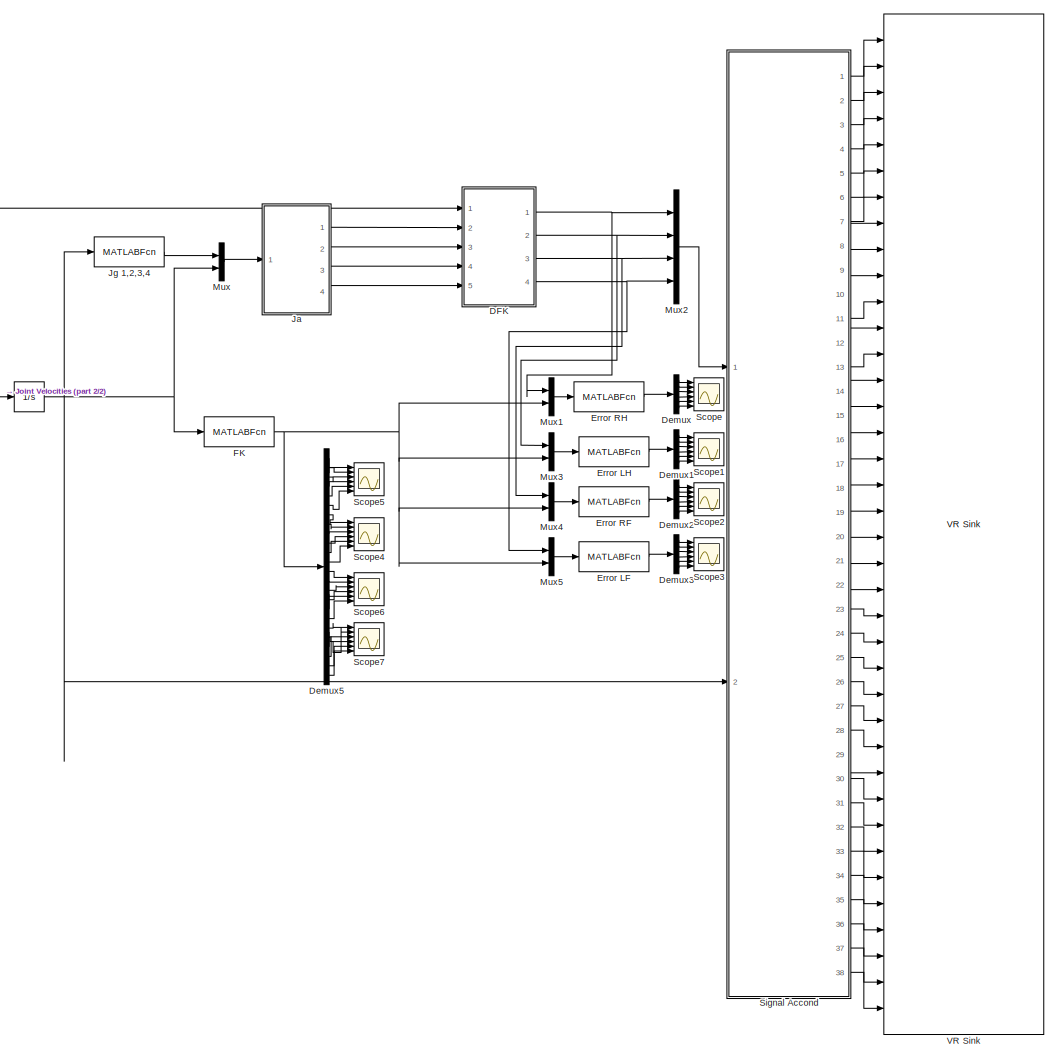
[diagram: root canvas - part 1/2, most of the canvas]
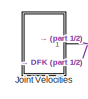
[diagram: root canvas - part 2/2, middle left region]
MODEL slx_c20f365ef06f
KIND model
BLOCK [Integrator]  
  Ports = [1, 1]
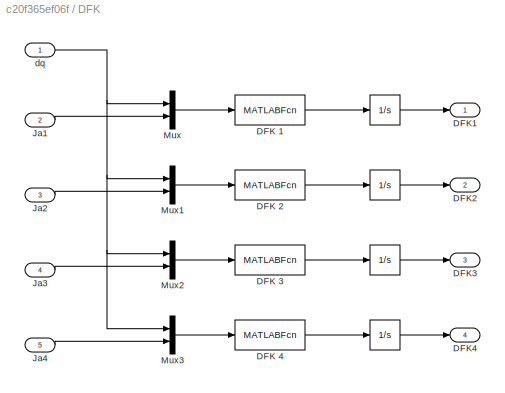
BLOCK [SubSystem] DFK
  FunctionWithSeparateData = off
  MaskHideContents = off
  MinAlgLoopOccurrences = off
  Opaque = off
  Ports = [5, 4]
  PropExecContextOutsideSubsystem = off
  RTWSystemCode = Auto
  RequestExecContextInheritance = off
BLOCK [Integrator] DFK/  
  InitialCondition = [0;-0.2250;-0.0145;0;0;0]
  Ports = [1, 1]
BLOCK [Integrator] DFK/    
  InitialCondition = [0;0.225;-0.0145;0;0;0]
  Ports = [1, 1]
BLOCK [Integrator] DFK/     
  InitialCondition = [0;-0.0385;-0.30250;0;0;0]
  Ports = [1, 1]
BLOCK [Integrator] DFK/      
  InitialCondition = [0;0.0385;-0.3025;0;0;0]
  Ports = [1, 1]
BLOCK [MATLABFcn] DFK/DFK 1
  MATLABFcn = Bioloid_DFK_SV(u(1:24),u(25:168))
  OutputDimensions = 6
  Ports = [1, 1]
BLOCK [MATLABFcn] DFK/DFK 2
  MATLABFcn = Bioloid_DFK_SV(u(1:24),u(25:168))
  OutputDimensions = 6
  Ports = [1, 1]
BLOCK [MATLABFcn] DFK/DFK 3
  MATLABFcn = Bioloid_DFK_SV(u(1:24),u(25:168))
  OutputDimensions = 6
  Ports = [1, 1]
BLOCK [MATLABFcn] DFK/DFK 4
  MATLABFcn = Bioloid_DFK_SV(u(1:24),u(25:168))
  OutputDimensions = 6
  Ports = [1, 1]
BLOCK [Outport] DFK/DFK1
  IconDisplay = Port number
BLOCK [Outport] DFK/DFK2
  IconDisplay = Port number
  Port = 2
BLOCK [Outport] DFK/DFK3
  IconDisplay = Port number
  Port = 3
BLOCK [Outport] DFK/DFK4
  IconDisplay = Port number
  Port = 4
BLOCK [Inport] DFK/Ja1
  IconDisplay = Port number
  Port = 2
BLOCK [Inport] DFK/Ja2
  IconDisplay = Port number
  Port = 3
BLOCK [Inport] DFK/Ja3
  IconDisplay = Port number
  Port = 4
BLOCK [Inport] DFK/Ja4
  IconDisplay = Port number
  Port = 5
BLOCK [Mux] DFK/Mux
  DisplayOption = bar
  Inputs = 2
  Ports = [2, 1]
BLOCK [Mux] DFK/Mux1
  DisplayOption = bar
  Inputs = 2
  Ports = [2, 1]
BLOCK [Mux] DFK/Mux2
  DisplayOption = bar
  Inputs = 2
  Ports = [2, 1]
BLOCK [Mux] DFK/Mux3
  DisplayOption = bar
  Inputs = 2
  Ports = [2, 1]
BLOCK [Inport] DFK/dq
  IconDisplay = Port number
BLOCK [Demux] Demux
  DisplayOption = bar
  Outputs = 6
  Ports = [1, 6]
BLOCK [Demux] Demux1
  DisplayOption = bar
  Outputs = 6
  Ports = [1, 6]
BLOCK [Demux] Demux2
  DisplayOption = bar
  Outputs = 6
  Ports = [1, 6]
BLOCK [Demux] Demux3
  DisplayOption = bar
  Outputs = 6
  Ports = [1, 6]
BLOCK [Demux] Demux5
  DisplayOption = bar
  Outputs = 24
  Ports = [1, 24]
BLOCK [MATLABFcn] Error LF
  MATLABFcn = Error_Poses(u(1:6),u(25:30))
  OutputDimensions = 6
  Ports = [1, 1]
BLOCK [MATLABFcn] Error LH
  MATLABFcn = Error_Poses(u(1:6),u(13:18))
  OutputDimensions = 6
  Ports = [1, 1]
BLOCK [MATLABFcn] Error RF
  MATLABFcn = Error_Poses(u(1:6),u(19:24))
  OutputDimensions = 6
  Ports = [1, 1]
BLOCK [MATLABFcn] Error RH
  MATLABFcn = Error_Poses(u(1:6),u(7:12))
  OutputDimensions = 6
  Ports = [1, 1]
BLOCK [MATLABFcn] FK
  MATLABFcn = ToSimulink_Bioloid_FK_ST(u)
  OutputDimensions = 24
  Ports = [1, 1]
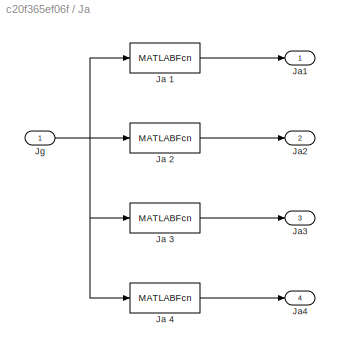
BLOCK [SubSystem] Ja 
  FunctionWithSeparateData = off
  MaskHideContents = off
  MinAlgLoopOccurrences = off
  Opaque = off
  Ports = [1, 4]
  PropExecContextOutsideSubsystem = off
  RTWSystemCode = Auto
  RequestExecContextInheritance = off
BLOCK [MATLABFcn] Ja /Ja 1
  MATLABFcn = Bioloid_Ja_SV(u(1:150),u(601:624))
  OutputDimensions = 144
  Ports = [1, 1]
BLOCK [MATLABFcn] Ja /Ja 2
  MATLABFcn = Bioloid_Ja_SV(u(151:300),u(601:624))
  OutputDimensions = 144
  Ports = [1, 1]
BLOCK [MATLABFcn] Ja /Ja 3
  MATLABFcn = Bioloid_Ja_SV(u(301:450),u(601:624))
  OutputDimensions = 144
  Ports = [1, 1]
BLOCK [MATLABFcn] Ja /Ja 4
  MATLABFcn = Bioloid_Ja_SV(u(451:600),u(601:624))
  OutputDimensions = 144
  Ports = [1, 1]
BLOCK [Outport] Ja /Ja1
  IconDisplay = Port number
BLOCK [Outport] Ja /Ja2
  IconDisplay = Port number
  Port = 2
BLOCK [Outport] Ja /Ja3
  IconDisplay = Port number
  Port = 3
BLOCK [Outport] Ja /Ja4
  IconDisplay = Port number
  Port = 4
BLOCK [Inport] Ja /Jg
  IconDisplay = Port number
BLOCK [MATLABFcn] Jg 1,2,3,4
  MATLABFcn = Bioloid_Jg_SV(u)
  OutputDimensions = 600
  Ports = [1, 1]
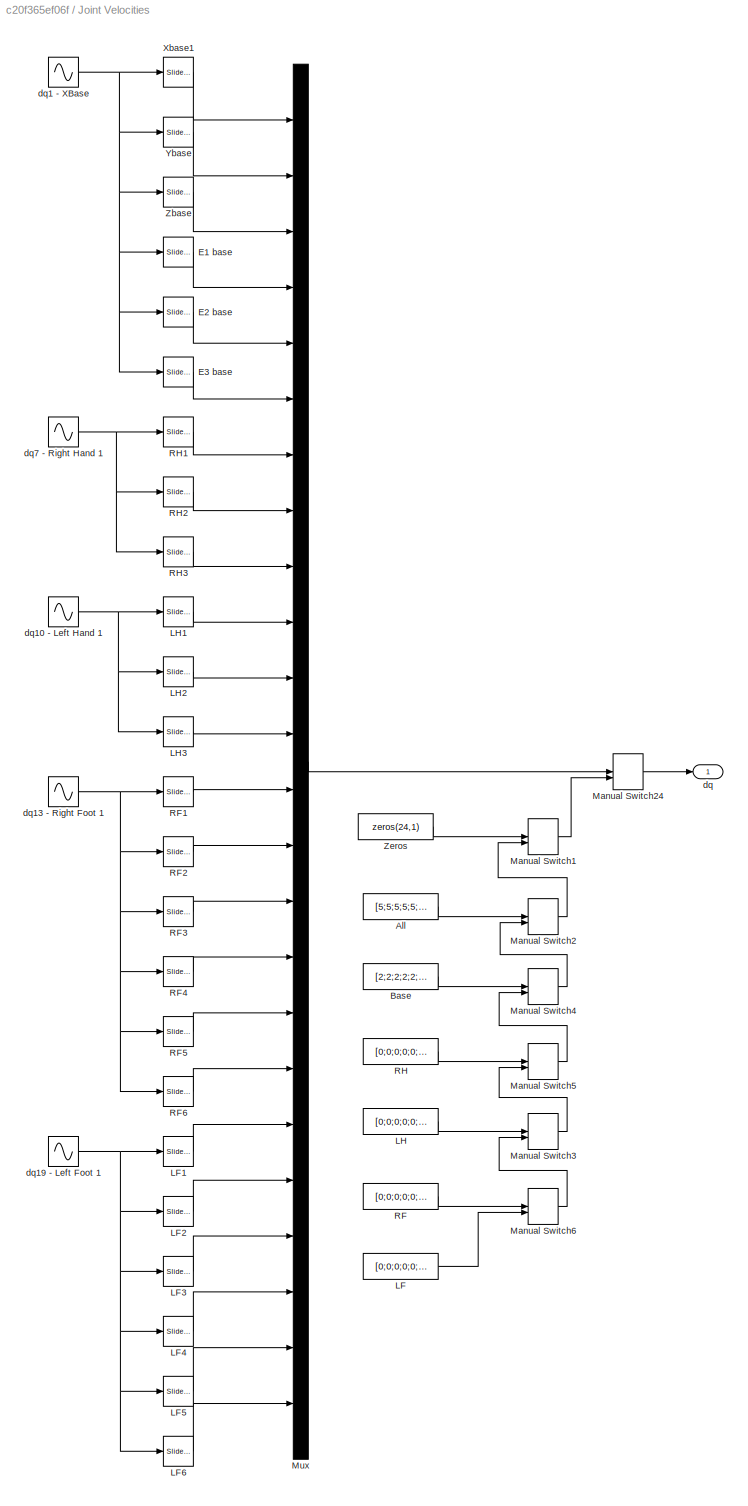
BLOCK [SubSystem] Joint Velocities
  FunctionWithSeparateData = off
  MaskHideContents = off
  MinAlgLoopOccurrences = off
  Opaque = off
  Ports = [0, 1]
  PropExecContextOutsideSubsystem = off
  RTWSystemCode = Auto
  RequestExecContextInheritance = off
BLOCK [Constant] Joint Velocities/All
  Value = [5;5;5;5;5;5;5;5;5;5;5;5;5;5;5;5;5;5;5;5;5;5;5;5]
BLOCK [Constant] Joint Velocities/Base
  Value = [2;2;2;2;2;2;0;0;0;0;0;0;0;0;0;0;0;0;0;0;0;0;0;0]
BLOCK [Reference] Joint Velocities/E1 base  REF=simulink/Math
Operations/Slider
Gain
  Ports = [1, 1]
  SourceBlock = simulink/Math\nOperations/Slider\nGain
  SourceType = Slider Gain
  gain = 0
  high = 5
  low = -5
BLOCK [Reference] Joint Velocities/E2 base  REF=simulink/Math
Operations/Slider
Gain
  Ports = [1, 1]
  SourceBlock = simulink/Math\nOperations/Slider\nGain
  SourceType = Slider Gain
  gain = 5
  high = 5
  low = -5
BLOCK [Reference] Joint Velocities/E3 base  REF=simulink/Math
Operations/Slider
Gain
  Ports = [1, 1]
  SourceBlock = simulink/Math\nOperations/Slider\nGain
  SourceType = Slider Gain
  gain = 0
  high = 5
  low = -5
BLOCK [Constant] Joint Velocities/LF
  Value = [0;0;0;0;0;0;0;0;0;0;0;0;0;0;0;0;0;0;2;2;2;2;2;2]
BLOCK [Reference] Joint Velocities/LF1  REF=simulink/Math
Operations/Slider
Gain
  Ports = [1, 1]
  SourceBlock = simulink/Math\nOperations/Slider\nGain
  SourceType = Slider Gain
  gain = 0
  high = 5
  low = 0
BLOCK [Reference] Joint Velocities/LF2  REF=simulink/Math
Operations/Slider
Gain
  Ports = [1, 1]
  SourceBlock = simulink/Math\nOperations/Slider\nGain
  SourceType = Slider Gain
  gain = 0
  high = 5
  low = 0
BLOCK [Reference] Joint Velocities/LF3  REF=simulink/Math
Operations/Slider
Gain
  Ports = [1, 1]
  SourceBlock = simulink/Math\nOperations/Slider\nGain
  SourceType = Slider Gain
  gain = 0
  high = 5
  low = 0
BLOCK [Reference] Joint Velocities/LF4  REF=simulink/Math
Operations/Slider
Gain
  Ports = [1, 1]
  SourceBlock = simulink/Math\nOperations/Slider\nGain
  SourceType = Slider Gain
  gain = 0
  high = 5
  low = 0
BLOCK [Reference] Joint Velocities/LF5  REF=simulink/Math
Operations/Slider
Gain
  Ports = [1, 1]
  SourceBlock = simulink/Math\nOperations/Slider\nGain
  SourceType = Slider Gain
  gain = 0
  high = 5
  low = 0
BLOCK [Reference] Joint Velocities/LF6  REF=simulink/Math
Operations/Slider
Gain
  Ports = [1, 1]
  SourceBlock = simulink/Math\nOperations/Slider\nGain
  SourceType = Slider Gain
  gain = 0
  high = 5
  low = 0
BLOCK [Constant] Joint Velocities/LH
  Value = [0;0;0;0;0;0;0;0;0;2;2;2;0;0;0;0;0;0;0;0;0;0;0;0]
BLOCK [Reference] Joint Velocities/LH1  REF=simulink/Math
Operations/Slider
Gain
  Ports = [1, 1]
  SourceBlock = simulink/Math\nOperations/Slider\nGain
  SourceType = Slider Gain
  gain = 0
  high = 5
  low = 0
BLOCK [Reference] Joint Velocities/LH2  REF=simulink/Math
Operations/Slider
Gain
  Ports = [1, 1]
  SourceBlock = simulink/Math\nOperations/Slider\nGain
  SourceType = Slider Gain
  gain = 0
  high = 5
  low = 0
BLOCK [Reference] Joint Velocities/LH3  REF=simulink/Math
Operations/Slider
Gain
  Ports = [1, 1]
  SourceBlock = simulink/Math\nOperations/Slider\nGain
  SourceType = Slider Gain
  gain = 0
  high = 5
  low = 0
BLOCK [ManualSwitch] Joint Velocities/Manual Switch1
  CurrentSetting = 0
BLOCK [ManualSwitch] Joint Velocities/Manual Switch2
BLOCK [ManualSwitch] Joint Velocities/Manual Switch24
BLOCK [ManualSwitch] Joint Velocities/Manual Switch3
  CurrentSetting = 0
BLOCK [ManualSwitch] Joint Velocities/Manual Switch4
BLOCK [ManualSwitch] Joint Velocities/Manual Switch5
  CurrentSetting = 0
BLOCK [ManualSwitch] Joint Velocities/Manual Switch6
  CurrentSetting = 0
BLOCK [Mux] Joint Velocities/Mux
  DisplayOption = bar
  Inputs = 24
  Ports = [24, 1]
BLOCK [Constant] Joint Velocities/RF
  Value = [0;0;0;0;0;0;0;0;0;0;0;0;2;2;2;2;2;2;0;0;0;0;0;0]
BLOCK [Reference] Joint Velocities/RF1  REF=simulink/Math
Operations/Slider
Gain
  Ports = [1, 1]
  SourceBlock = simulink/Math\nOperations/Slider\nGain
  SourceType = Slider Gain
  gain = 0
  high = 5
  low = 0
BLOCK [Reference] Joint Velocities/RF2  REF=simulink/Math
Operations/Slider
Gain
  Ports = [1, 1]
  SourceBlock = simulink/Math\nOperations/Slider\nGain
  SourceType = Slider Gain
  gain = 0
  high = 5
  low = 0
BLOCK [Reference] Joint Velocities/RF3  REF=simulink/Math
Operations/Slider
Gain
  Ports = [1, 1]
  SourceBlock = simulink/Math\nOperations/Slider\nGain
  SourceType = Slider Gain
  gain = 0
  high = 5
  low = 0
BLOCK [Reference] Joint Velocities/RF4  REF=simulink/Math
Operations/Slider
Gain
  Ports = [1, 1]
  SourceBlock = simulink/Math\nOperations/Slider\nGain
  SourceType = Slider Gain
  gain = 0
  high = 5
  low = 0
BLOCK [Reference] Joint Velocities/RF5  REF=simulink/Math
Operations/Slider
Gain
  Ports = [1, 1]
  SourceBlock = simulink/Math\nOperations/Slider\nGain
  SourceType = Slider Gain
  gain = 0
  high = 5
  low = 0
BLOCK [Reference] Joint Velocities/RF6  REF=simulink/Math
Operations/Slider
Gain
  Ports = [1, 1]
  SourceBlock = simulink/Math\nOperations/Slider\nGain
  SourceType = Slider Gain
  gain = 0
  high = 5
  low = 0
BLOCK [Constant] Joint Velocities/RH
  Value = [0;0;0;0;0;0;2;2;2;0;0;0;0;0;0;0;0;0;0;0;0;0;0;0]
BLOCK [Reference] Joint Velocities/RH1  REF=simulink/Math
Operations/Slider
Gain
  Ports = [1, 1]
  SourceBlock = simulink/Math\nOperations/Slider\nGain
  SourceType = Slider Gain
  gain = 0
  high = 5
  low = 0
BLOCK [Reference] Joint Velocities/RH2  REF=simulink/Math
Operations/Slider
Gain
  Ports = [1, 1]
  SourceBlock = simulink/Math\nOperations/Slider\nGain
  SourceType = Slider Gain
  gain = 0
  high = 5
  low = 0
BLOCK [Reference] Joint Velocities/RH3  REF=simulink/Math
Operations/Slider
Gain
  Ports = [1, 1]
  SourceBlock = simulink/Math\nOperations/Slider\nGain
  SourceType = Slider Gain
  gain = 0
  high = 5
  low = 0
BLOCK [Reference] Joint Velocities/Xbase1  REF=simulink/Math
Operations/Slider
Gain
  Ports = [1, 1]
  SourceBlock = simulink/Math\nOperations/Slider\nGain
  SourceType = Slider Gain
  gain = 5
  high = 5
  low = -5
BLOCK [Reference] Joint Velocities/Ybase  REF=simulink/Math
Operations/Slider
Gain
  Ports = [1, 1]
  SourceBlock = simulink/Math\nOperations/Slider\nGain
  SourceType = Slider Gain
  gain = 5
  high = 5
  low = -5
BLOCK [Reference] Joint Velocities/Zbase  REF=simulink/Math
Operations/Slider
Gain
  Ports = [1, 1]
  SourceBlock = simulink/Math\nOperations/Slider\nGain
  SourceType = Slider Gain
  gain = 5
  high = 5
  low = -5
BLOCK [Constant] Joint Velocities/Zeros
  Value = zeros(24,1)
BLOCK [Outport] Joint Velocities/dq
  IconDisplay = Port number
BLOCK [Sin] Joint Velocities/dq1 - XBase
  Ports = [0, 1]
  SampleTime = 0
BLOCK [Sin] Joint Velocities/dq10 - Left Hand 1
  Ports = [0, 1]
  SampleTime = 0
BLOCK [Sin] Joint Velocities/dq13 - Right Foot 1
  Ports = [0, 1]
  SampleTime = 0
BLOCK [Sin] Joint Velocities/dq19 - Left Foot 1
  Ports = [0, 1]
  SampleTime = 0
BLOCK [Sin] Joint Velocities/dq7 - Right Hand 1
  Ports = [0, 1]
  SampleTime = 0
BLOCK [Mux] Mux
  DisplayOption = bar
  Inputs = 2
  Ports = [2, 1]
BLOCK [Mux] Mux1
  DisplayOption = bar
  Inputs = 2
  Ports = [2, 1]
BLOCK [Mux] Mux2
  DisplayOption = bar
  Ports = [4, 1]
BLOCK [Mux] Mux3
  DisplayOption = bar
  Inputs = 2
  Ports = [2, 1]
BLOCK [Mux] Mux4
  DisplayOption = bar
  Inputs = 2
  Ports = [2, 1]
BLOCK [Mux] Mux5
  DisplayOption = bar
  Inputs = 2
  Ports = [2, 1]
BLOCK [Scope] Scope
  DataFormat = StructureWithTime
  Floating = off
  NumInputPorts = 6
  Ports = [6]
  SampleTime = 0
  ShowLegends = off
  YMax = 1.7e-09~2.75e-09~6e-17~1~1~-1e-06
  YMin = 7e-10~1.03398e-25~0~-1~-1~-7e-06
  ZoomMode = xonly
BLOCK [Scope] Scope1
  DataFormat = StructureWithTime
  Floating = off
  NumInputPorts = 6
  Ports = [6]
  SampleTime = 0
  SaveName = ScopeData1
  ShowLegends = off
  TimeRange = 10
  YMax = 5e-06~3.5e-05~2.5e-06~7~0.001~1
  YMin = -2.5e-05~-5e-06~-2e-05~-1~-0.007~-7
BLOCK [Scope] Scope2
  DataFormat = StructureWithTime
  Floating = off
  NumInputPorts = 6
  Ports = [6]
  SampleTime = 0
  SaveName = ScopeData2
  ShowLegends = off
  YMax = 1e-05~2.5e-05~6e-05~40~0.1~0.5
  YMin = -7e-05~-0.000175~-2e-05~-5~-0.075~-3.5
BLOCK [Scope] Scope3
  DataFormat = StructureWithTime
  Floating = off
  NumInputPorts = 6
  Ports = [6]
  SampleTime = 0
  SaveName = ScopeData3
  ShowLegends = off
  YMax = 1e-05~2.5e-05~6e-05~40~0.1~0.5
  YMin = -7e-05~-0.000175~-2e-05~-5~-0.075~-3.5
BLOCK [Scope] Scope4
  DataFormat = StructureWithTime
  Floating = off
  NumInputPorts = 6
  Ports = [6]
  SampleTime = 0
  SaveName = ScopeData4
  ShowLegends = off
  YMax = 7.5e-06~-2e-05~0.00011~7~-0.005~0
  YMin = -2e-05~-9e-05~4e-05~0~-0.015~-7
BLOCK [Scope] Scope5
  DataFormat = StructureWithTime
  Floating = off
  NumInputPorts = 6
  Ports = [6]
  SampleTime = 0
  SaveName = ScopeData5
  ShowLegends = off
  YMax = 5.6~5.4~5.8~-0.7~-0.005~0
  YMin = 4.6~4.6~4.9~-1.7~-0.015~-7
  ZoomMode = yonly
BLOCK [Scope] Scope6
  DataFormat = StructureWithTime
  Floating = off
  NumInputPorts = 6
  Ports = [6]
  SampleTime = 0
  SaveName = ScopeData6
  ShowLegends = off
  YMax = 7.5e-06~-2e-05~0.00011~7~-0.005~0
  YMin = -2e-05~-9e-05~4e-05~0~-0.015~-7
BLOCK [Scope] Scope7
  DataFormat = StructureWithTime
  Floating = off
  NumInputPorts = 6
  Ports = [6]
  SampleTime = 0
  SaveName = ScopeData7
  ShowLegends = off
  YMax = 7.5e-06~-2e-05~0.00011~7~-0.005~0
  YMin = -2e-05~-9e-05~4e-05~0~-0.015~-7
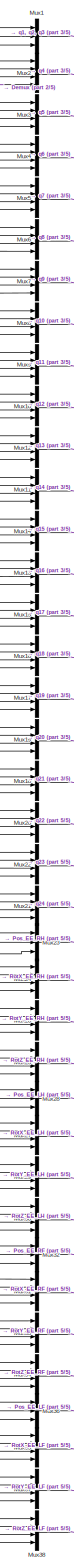
[diagram: Signal Accond - part 1/5, center side, full height]
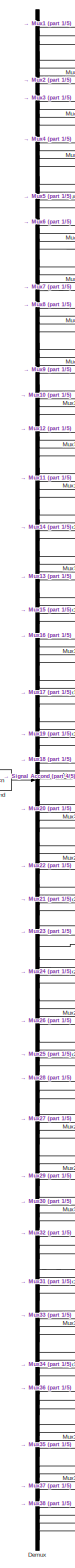
[diagram: Signal Accond - part 2/5, center side, full height]
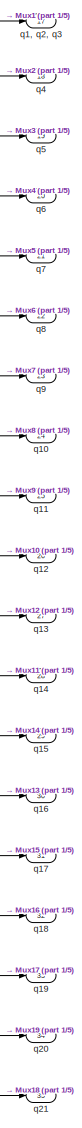
[diagram: Signal Accond - part 3/5, top right region]
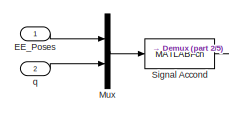
[diagram: Signal Accond - part 4/5, middle left region]
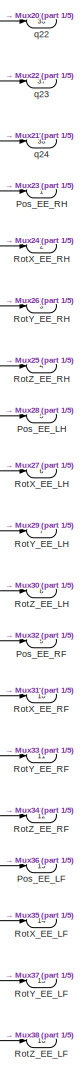
[diagram: Signal Accond - part 5/5, bottom right region]
BLOCK [SubSystem] Signal Accond
  FunctionWithSeparateData = off
  MaskHideContents = off
  MinAlgLoopOccurrences = off
  Opaque = off
  Ports = [2, 38]
  PropExecContextOutsideSubsystem = off
  RTWSystemCode = Auto
  RequestExecContextInheritance = off
BLOCK [Demux] Signal Accond/Demux
  DisplayOption = bar
  Outputs = 147
  Ports = [1, 147]
BLOCK [Inport] Signal Accond/EE_Poses
  IconDisplay = Port number
BLOCK [Mux] Signal Accond/Mux
  DisplayOption = bar
  Inputs = 2
  Ports = [2, 1]
BLOCK [Mux] Signal Accond/Mux1
  DisplayOption = bar
  Inputs = 3
  Ports = [3, 1]
BLOCK [Mux] Signal Accond/Mux10
  DisplayOption = bar
  Ports = [4, 1]
BLOCK [Mux] Signal Accond/Mux11
  DisplayOption = bar
  Ports = [4, 1]
BLOCK [Mux] Signal Accond/Mux12
  DisplayOption = bar
  Ports = [4, 1]
BLOCK [Mux] Signal Accond/Mux13
  DisplayOption = bar
  Ports = [4, 1]
BLOCK [Mux] Signal Accond/Mux14
  DisplayOption = bar
  Ports = [4, 1]
BLOCK [Mux] Signal Accond/Mux15
  DisplayOption = bar
  Ports = [4, 1]
BLOCK [Mux] Signal Accond/Mux16
  DisplayOption = bar
  Ports = [4, 1]
BLOCK [Mux] Signal Accond/Mux17
  DisplayOption = bar
  Ports = [4, 1]
BLOCK [Mux] Signal Accond/Mux18
  DisplayOption = bar
  Ports = [4, 1]
BLOCK [Mux] Signal Accond/Mux19
  DisplayOption = bar
  Ports = [4, 1]
BLOCK [Mux] Signal Accond/Mux2
  DisplayOption = bar
  Ports = [4, 1]
BLOCK [Mux] Signal Accond/Mux20
  DisplayOption = bar
  Ports = [4, 1]
BLOCK [Mux] Signal Accond/Mux21
  DisplayOption = bar
  Ports = [4, 1]
BLOCK [Mux] Signal Accond/Mux22
  DisplayOption = bar
  Ports = [4, 1]
BLOCK [Mux] Signal Accond/Mux23
  DisplayOption = bar
  Inputs = 3
  Ports = [3, 1]
BLOCK [Mux] Signal Accond/Mux24
  DisplayOption = bar
  Ports = [4, 1]
BLOCK [Mux] Signal Accond/Mux25
  DisplayOption = bar
  Ports = [4, 1]
BLOCK [Mux] Signal Accond/Mux26
  DisplayOption = bar
  Ports = [4, 1]
BLOCK [Mux] Signal Accond/Mux27
  DisplayOption = bar
  Ports = [4, 1]
BLOCK [Mux] Signal Accond/Mux28
  DisplayOption = bar
  Inputs = 3
  Ports = [3, 1]
BLOCK [Mux] Signal Accond/Mux29
  DisplayOption = bar
  Ports = [4, 1]
BLOCK [Mux] Signal Accond/Mux3
  DisplayOption = bar
  Ports = [4, 1]
BLOCK [Mux] Signal Accond/Mux30
  DisplayOption = bar
  Ports = [4, 1]
BLOCK [Mux] Signal Accond/Mux31
  DisplayOption = bar
  Ports = [4, 1]
BLOCK [Mux] Signal Accond/Mux32
  DisplayOption = bar
  Inputs = 3
  Ports = [3, 1]
BLOCK [Mux] Signal Accond/Mux33
  DisplayOption = bar
  Ports = [4, 1]
BLOCK [Mux] Signal Accond/Mux34
  DisplayOption = bar
  Ports = [4, 1]
BLOCK [Mux] Signal Accond/Mux35
  DisplayOption = bar
  Ports = [4, 1]
BLOCK [Mux] Signal Accond/Mux36
  DisplayOption = bar
  Inputs = 3
  Ports = [3, 1]
BLOCK [Mux] Signal Accond/Mux37
  DisplayOption = bar
  Ports = [4, 1]
BLOCK [Mux] Signal Accond/Mux38
  DisplayOption = bar
  Ports = [4, 1]
BLOCK [Mux] Signal Accond/Mux4
  DisplayOption = bar
  Ports = [4, 1]
BLOCK [Mux] Signal Accond/Mux5
  DisplayOption = bar
  Ports = [4, 1]
BLOCK [Mux] Signal Accond/Mux6
  DisplayOption = bar
  Ports = [4, 1]
BLOCK [Mux] Signal Accond/Mux7
  DisplayOption = bar
  Ports = [4, 1]
BLOCK [Mux] Signal Accond/Mux8
  DisplayOption = bar
  Ports = [4, 1]
BLOCK [Mux] Signal Accond/Mux9
  DisplayOption = bar
  Ports = [4, 1]
BLOCK [Outport] Signal Accond/Pos_EE_LF
  IconDisplay = Port number
  Port = 13
BLOCK [Outport] Signal Accond/Pos_EE_LH
  IconDisplay = Port number
  Port = 5
BLOCK [Outport] Signal Accond/Pos_EE_RF
  IconDisplay = Port number
  Port = 9
BLOCK [Outport] Signal Accond/Pos_EE_RH
  IconDisplay = Port number
BLOCK [Outport] Signal Accond/RotX_EE_LF
  IconDisplay = Port number
  Port = 14
BLOCK [Outport] Signal Accond/RotX_EE_LH
  IconDisplay = Port number
  Port = 6
BLOCK [Outport] Signal Accond/RotX_EE_RF
  IconDisplay = Port number
  Port = 10
BLOCK [Outport] Signal Accond/RotX_EE_RH
  IconDisplay = Port number
  Port = 2
BLOCK [Outport] Signal Accond/RotY_EE_LF
  IconDisplay = Port number
  Port = 15
BLOCK [Outport] Signal Accond/RotY_EE_LH
  IconDisplay = Port number
  Port = 7
BLOCK [Outport] Signal Accond/RotY_EE_RF
  IconDisplay = Port number
  Port = 11
BLOCK [Outport] Signal Accond/RotY_EE_RH
  IconDisplay = Port number
  Port = 3
BLOCK [Outport] Signal Accond/RotZ_EE_LF
  IconDisplay = Port number
  Port = 16
BLOCK [Outport] Signal Accond/RotZ_EE_LH
  IconDisplay = Port number
  Port = 8
BLOCK [Outport] Signal Accond/RotZ_EE_RF
  IconDisplay = Port number
  Port = 12
BLOCK [Outport] Signal Accond/RotZ_EE_RH
  IconDisplay = Port number
  Port = 4
BLOCK [MATLABFcn] Signal Accond/Signal Accond
  MATLABFcn = Bioloid_Signals2VRML(u(1:6),u(7:12),u(13:18),u(19:24),u(25:48))
  Ports = [1, 1]
BLOCK [Inport] Signal Accond/q
  IconDisplay = Port number
  Port = 2
BLOCK [Outport] Signal Accond/q1, q2, q3
  IconDisplay = Port number
  Port = 17
BLOCK [Outport] Signal Accond/q10
  IconDisplay = Port number
  Port = 24
BLOCK [Outport] Signal Accond/q11
  IconDisplay = Port number
  Port = 25
BLOCK [Outport] Signal Accond/q12
  IconDisplay = Port number
  Port = 26
BLOCK [Outport] Signal Accond/q13
  IconDisplay = Port number
  Port = 27
BLOCK [Outport] Signal Accond/q14
  IconDisplay = Port number
  Port = 28
BLOCK [Outport] Signal Accond/q15
  IconDisplay = Port number
  Port = 29
BLOCK [Outport] Signal Accond/q16
  IconDisplay = Port number
  Port = 30
BLOCK [Outport] Signal Accond/q17
  IconDisplay = Port number
  Port = 31
BLOCK [Outport] Signal Accond/q18
  IconDisplay = Port number
  Port = 32
BLOCK [Outport] Signal Accond/q19
  IconDisplay = Port number
  Port = 33
BLOCK [Outport] Signal Accond/q20
  IconDisplay = Port number
  Port = 34
BLOCK [Outport] Signal Accond/q21
  IconDisplay = Port number
  Port = 35
BLOCK [Outport] Signal Accond/q22
  IconDisplay = Port number
  Port = 36
BLOCK [Outport] Signal Accond/q23
  IconDisplay = Port number
  Port = 37
BLOCK [Outport] Signal Accond/q24
  IconDisplay = Port number
  Port = 38
BLOCK [Outport] Signal Accond/q4
  IconDisplay = Port number
  Port = 18
BLOCK [Outport] Signal Accond/q5 
  IconDisplay = Port number
  Port = 19
BLOCK [Outport] Signal Accond/q6
  IconDisplay = Port number
  Port = 20
BLOCK [Outport] Signal Accond/q7
  IconDisplay = Port number
  Port = 21
BLOCK [Outport] Signal Accond/q8
  IconDisplay = Port number
  Port = 22
BLOCK [Outport] Signal Accond/q9
  IconDisplay = Port number
  Port = 23
BLOCK [Reference] VR Sink  REF=vrlib/VR Sink
  AllowVariableSize = off
  AutoView = off
  FieldsWritten = EE_RH_Traslation.translation.3.1.1.double#EE_RH_RotX.rotation.4.1.1.double#EE_RH_RotY.rotation.4.1.1.double#EE_RH_RotZ.rotation.4.1.1.double#EE_LH_Traslation.translation.3.1.1.double#EE_LH_RotX.rotation.4.1.1.double#EE_LH_RotY.rotation.4.1.1.double#EE_LH_RotZ.rotation.4.1.1.double#EE_RF_Traslation.translation.3.1.1.double#EE_RF_RotX.rotation.4.1.1.double#EE_RF_RotY.rotation.4.1.1.double#EE_RF_RotZ...<+909ch>
  InstantiateOnLoad = on
  Ports = [38]
  RemoteChange = off
  RemoteView = off
  SampleTime = 0.1
  SourceBlock = vrlib/VR Sink
  SourceType = Virtual Reality Sink
  VideoDimensions = []
  ViewEnable = on
  WorldFileName = Bioloid (Fisico White_Background).WRL
NET  :1 -> FK:1, Jg 1,2,3,4:1, Mux:2, Signal Accond:2
LINE DFK/      :1 -> DFK/DFK4:1
LINE DFK/     :1 -> DFK/DFK3:1
LINE DFK/    :1 -> DFK/DFK2:1
LINE DFK/  :1 -> DFK/DFK1:1
LINE DFK/DFK 1:1 -> DFK/  :1
LINE DFK/DFK 2:1 -> DFK/    :1
LINE DFK/DFK 3:1 -> DFK/     :1
LINE DFK/DFK 4:1 -> DFK/      :1
LINE DFK/Ja1:1 -> DFK/Mux:2
LINE DFK/Ja2:1 -> DFK/Mux1:2
LINE DFK/Ja3:1 -> DFK/Mux2:2
LINE DFK/Ja4:1 -> DFK/Mux3:2
LINE DFK/Mux1:1 -> DFK/DFK 2:1
LINE DFK/Mux2:1 -> DFK/DFK 3:1
LINE DFK/Mux3:1 -> DFK/DFK 4:1
LINE DFK/Mux:1 -> DFK/DFK 1:1
NET DFK/dq:1 -> DFK/Mux1:1, DFK/Mux2:1, DFK/Mux3:1, DFK/Mux:1
NET DFK:1 -> Mux1:1, Mux2:1
NET DFK:2 -> Mux2:2, Mux3:1
NET DFK:3 -> Mux2:3, Mux4:1
NET DFK:4 -> Mux2:4, Mux5:1
LINE Demux1:1 -> Scope1:1
LINE Demux1:2 -> Scope1:2
LINE Demux1:3 -> Scope1:3
LINE Demux1:4 -> Scope1:4
LINE Demux1:5 -> Scope1:5
LINE Demux1:6 -> Scope1:6
LINE Demux2:1 -> Scope2:1
LINE Demux2:2 -> Scope2:2
LINE Demux2:3 -> Scope2:3
LINE Demux2:4 -> Scope2:4
LINE Demux2:5 -> Scope2:5
LINE Demux2:6 -> Scope2:6
LINE Demux3:1 -> Scope3:1
LINE Demux3:2 -> Scope3:2
LINE Demux3:3 -> Scope3:3
LINE Demux3:4 -> Scope3:4
LINE Demux3:5 -> Scope3:5
LINE Demux3:6 -> Scope3:6
LINE Demux5:1 -> Scope5:1
LINE Demux5:10 -> Scope4:4
LINE Demux5:11 -> Scope4:5
LINE Demux5:12 -> Scope4:6
LINE Demux5:13 -> Scope6:1
LINE Demux5:14 -> Scope6:2
LINE Demux5:15 -> Scope6:3
LINE Demux5:16 -> Scope6:4
LINE Demux5:17 -> Scope6:5
LINE Demux5:18 -> Scope6:6
LINE Demux5:19 -> Scope7:1
LINE Demux5:2 -> Scope5:2
LINE Demux5:20 -> Scope7:2
LINE Demux5:21 -> Scope7:3
LINE Demux5:22 -> Scope7:4
LINE Demux5:23 -> Scope7:5
LINE Demux5:24 -> Scope7:6
LINE Demux5:3 -> Scope5:3
LINE Demux5:4 -> Scope5:4
LINE Demux5:5 -> Scope5:5
LINE Demux5:6 -> Scope5:6
LINE Demux5:7 -> Scope4:1
LINE Demux5:8 -> Scope4:2
LINE Demux5:9 -> Scope4:3
LINE Demux:1 -> Scope:1
LINE Demux:2 -> Scope:2
LINE Demux:3 -> Scope:3
LINE Demux:4 -> Scope:4
LINE Demux:5 -> Scope:5
LINE Demux:6 -> Scope:6
LINE Error LF:1 -> Demux3:1
LINE Error LH:1 -> Demux1:1
LINE Error RF:1 -> Demux2:1
LINE Error RH:1 -> Demux:1
NET FK:1 -> Demux5:1, Mux1:2, Mux3:2, Mux4:2, Mux5:2
LINE Ja /Ja 1:1 -> Ja /Ja1:1
LINE Ja /Ja 2:1 -> Ja /Ja2:1
LINE Ja /Ja 3:1 -> Ja /Ja3:1
LINE Ja /Ja 4:1 -> Ja /Ja4:1
NET Ja /Jg:1 -> Ja /Ja 1:1, Ja /Ja 2:1, Ja /Ja 3:1, Ja /Ja 4:1
LINE Ja :1 -> DFK:2
LINE Ja :2 -> DFK:3
LINE Ja :3 -> DFK:4
LINE Ja :4 -> DFK:5
LINE Jg 1,2,3,4:1 -> Mux:1
LINE Joint Velocities/All:1 -> Joint Velocities/Manual Switch2:1
LINE Joint Velocities/Base:1 -> Joint Velocities/Manual Switch4:1
LINE Joint Velocities/E1 base:1 -> Joint Velocities/Mux:4
LINE Joint Velocities/E2 base:1 -> Joint Velocities/Mux:5
LINE Joint Velocities/E3 base:1 -> Joint Velocities/Mux:6
LINE Joint Velocities/LF1:1 -> Joint Velocities/Mux:19
LINE Joint Velocities/LF2:1 -> Joint Velocities/Mux:20
LINE Joint Velocities/LF3:1 -> Joint Velocities/Mux:21
LINE Joint Velocities/LF4:1 -> Joint Velocities/Mux:22
LINE Joint Velocities/LF5:1 -> Joint Velocities/Mux:23
LINE Joint Velocities/LF6:1 -> Joint Velocities/Mux:24
LINE Joint Velocities/LF:1 -> Joint Velocities/Manual Switch6:2
LINE Joint Velocities/LH1:1 -> Joint Velocities/Mux:10
LINE Joint Velocities/LH2:1 -> Joint Velocities/Mux:11
LINE Joint Velocities/LH3:1 -> Joint Velocities/Mux:12
LINE Joint Velocities/LH:1 -> Joint Velocities/Manual Switch3:1
LINE Joint Velocities/Manual Switch1:1 -> Joint Velocities/Manual Switch24:2
LINE Joint Velocities/Manual Switch24:1 -> Joint Velocities/dq:1
LINE Joint Velocities/Manual Switch2:1 -> Joint Velocities/Manual Switch1:2
LINE Joint Velocities/Manual Switch3:1 -> Joint Velocities/Manual Switch5:2
LINE Joint Velocities/Manual Switch4:1 -> Joint Velocities/Manual Switch2:2
LINE Joint Velocities/Manual Switch5:1 -> Joint Velocities/Manual Switch4:2
LINE Joint Velocities/Manual Switch6:1 -> Joint Velocities/Manual Switch3:2
LINE Joint Velocities/Mux:1 -> Joint Velocities/Manual Switch24:1
LINE Joint Velocities/RF1:1 -> Joint Velocities/Mux:13
LINE Joint Velocities/RF2:1 -> Joint Velocities/Mux:14
LINE Joint Velocities/RF3:1 -> Joint Velocities/Mux:15
LINE Joint Velocities/RF4:1 -> Joint Velocities/Mux:16
LINE Joint Velocities/RF5:1 -> Joint Velocities/Mux:17
LINE Joint Velocities/RF6:1 -> Joint Velocities/Mux:18
LINE Joint Velocities/RF:1 -> Joint Velocities/Manual Switch6:1
LINE Joint Velocities/RH1:1 -> Joint Velocities/Mux:7
LINE Joint Velocities/RH2:1 -> Joint Velocities/Mux:8
LINE Joint Velocities/RH3:1 -> Joint Velocities/Mux:9
LINE Joint Velocities/RH:1 -> Joint Velocities/Manual Switch5:1
LINE Joint Velocities/Xbase1:1 -> Joint Velocities/Mux:1
LINE Joint Velocities/Ybase:1 -> Joint Velocities/Mux:2
LINE Joint Velocities/Zbase:1 -> Joint Velocities/Mux:3
LINE Joint Velocities/Zeros:1 -> Joint Velocities/Manual Switch1:1
NET Joint Velocities/dq1 - XBase:1 -> Joint Velocities/E1 base:1, Joint Velocities/E2 base:1, Joint Velocities/E3 base:1, Joint Velocities/Xbase1:1, Joint Velocities/Ybase:1, Joint Velocities/Zbase:1
NET Joint Velocities/dq10 - Left Hand 1:1 -> Joint Velocities/LH1:1, Joint Velocities/LH2:1, Joint Velocities/LH3:1
NET Joint Velocities/dq13 - Right Foot 1:1 -> Joint Velocities/RF1:1, Joint Velocities/RF2:1, Joint Velocities/RF3:1, Joint Velocities/RF4:1, Joint Velocities/RF5:1, Joint Velocities/RF6:1
NET Joint Velocities/dq19 - Left Foot 1:1 -> Joint Velocities/LF1:1, Joint Velocities/LF2:1, Joint Velocities/LF3:1, Joint Velocities/LF4:1, Joint Velocities/LF5:1, Joint Velocities/LF6:1
NET Joint Velocities/dq7 - Right Hand 1:1 -> Joint Velocities/RH1:1, Joint Velocities/RH2:1, Joint Velocities/RH3:1
NET Joint Velocities:1 ->  :1, DFK:1
LINE Mux1:1 -> Error RH:1
LINE Mux2:1 -> Signal Accond:1
LINE Mux3:1 -> Error LH:1
LINE Mux4:1 -> Error RF:1
LINE Mux5:1 -> Error LF:1
LINE Mux:1 -> Ja :1
LINE Signal Accond/Demux:1 -> Signal Accond/Mux1:1
LINE Signal Accond/Demux:10 -> Signal Accond/Mux3:3
LINE Signal Accond/Demux:100 -> Signal Accond/Mux25:2
LINE Signal Accond/Demux:101 -> Signal Accond/Mux25:3
LINE Signal Accond/Demux:102 -> Signal Accond/Mux25:4
LINE Signal Accond/Demux:103 -> Signal Accond/Mux28:1
LINE Signal Accond/Demux:104 -> Signal Accond/Mux28:2
LINE Signal Accond/Demux:105 -> Signal Accond/Mux28:3
LINE Signal Accond/Demux:106 -> Signal Accond/Mux27:1
LINE Signal Accond/Demux:107 -> Signal Accond/Mux27:2
LINE Signal Accond/Demux:108 -> Signal Accond/Mux27:3
LINE Signal Accond/Demux:109 -> Signal Accond/Mux27:4
LINE Signal Accond/Demux:11 -> Signal Accond/Mux3:4
LINE Signal Accond/Demux:110 -> Signal Accond/Mux29:1
LINE Signal Accond/Demux:111 -> Signal Accond/Mux29:2
LINE Signal Accond/Demux:112 -> Signal Accond/Mux29:3
LINE Signal Accond/Demux:113 -> Signal Accond/Mux29:4
LINE Signal Accond/Demux:114 -> Signal Accond/Mux30:1
LINE Signal Accond/Demux:115 -> Signal Accond/Mux30:2
LINE Signal Accond/Demux:116 -> Signal Accond/Mux30:3
LINE Signal Accond/Demux:117 -> Signal Accond/Mux30:4
LINE Signal Accond/Demux:118 -> Signal Accond/Mux32:1
LINE Signal Accond/Demux:119 -> Signal Accond/Mux32:2
LINE Signal Accond/Demux:12 -> Signal Accond/Mux4:1
LINE Signal Accond/Demux:120 -> Signal Accond/Mux32:3
LINE Signal Accond/Demux:121 -> Signal Accond/Mux31:1
LINE Signal Accond/Demux:122 -> Signal Accond/Mux31:2
LINE Signal Accond/Demux:123 -> Signal Accond/Mux31:3
LINE Signal Accond/Demux:124 -> Signal Accond/Mux31:4
LINE Signal Accond/Demux:125 -> Signal Accond/Mux33:1
LINE Signal Accond/Demux:126 -> Signal Accond/Mux33:2
LINE Signal Accond/Demux:127 -> Signal Accond/Mux33:3
LINE Signal Accond/Demux:128 -> Signal Accond/Mux33:4
LINE Signal Accond/Demux:129 -> Signal Accond/Mux34:1
LINE Signal Accond/Demux:13 -> Signal Accond/Mux4:2
LINE Signal Accond/Demux:130 -> Signal Accond/Mux34:2
LINE Signal Accond/Demux:131 -> Signal Accond/Mux34:3
LINE Signal Accond/Demux:132 -> Signal Accond/Mux34:4
LINE Signal Accond/Demux:133 -> Signal Accond/Mux36:1
LINE Signal Accond/Demux:134 -> Signal Accond/Mux36:2
LINE Signal Accond/Demux:135 -> Signal Accond/Mux36:3
LINE Signal Accond/Demux:136 -> Signal Accond/Mux35:1
LINE Signal Accond/Demux:137 -> Signal Accond/Mux35:2
LINE Signal Accond/Demux:138 -> Signal Accond/Mux35:3
LINE Signal Accond/Demux:139 -> Signal Accond/Mux35:4
LINE Signal Accond/Demux:14 -> Signal Accond/Mux4:3
LINE Signal Accond/Demux:140 -> Signal Accond/Mux37:1
LINE Signal Accond/Demux:141 -> Signal Accond/Mux37:2
LINE Signal Accond/Demux:142 -> Signal Accond/Mux37:3
LINE Signal Accond/Demux:143 -> Signal Accond/Mux37:4
LINE Signal Accond/Demux:144 -> Signal Accond/Mux38:1
LINE Signal Accond/Demux:145 -> Signal Accond/Mux38:2
LINE Signal Accond/Demux:146 -> Signal Accond/Mux38:3
LINE Signal Accond/Demux:147 -> Signal Accond/Mux38:4
LINE Signal Accond/Demux:15 -> Signal Accond/Mux4:4
LINE Signal Accond/Demux:16 -> Signal Accond/Mux5:1
LINE Signal Accond/Demux:17 -> Signal Accond/Mux5:2
LINE Signal Accond/Demux:18 -> Signal Accond/Mux5:3
LINE Signal Accond/Demux:19 -> Signal Accond/Mux5:4
LINE Signal Accond/Demux:2 -> Signal Accond/Mux1:2
LINE Signal Accond/Demux:20 -> Signal Accond/Mux6:1
LINE Signal Accond/Demux:21 -> Signal Accond/Mux6:2
LINE Signal Accond/Demux:22 -> Signal Accond/Mux6:3
LINE Signal Accond/Demux:23 -> Signal Accond/Mux6:4
LINE Signal Accond/Demux:24 -> Signal Accond/Mux7:1
LINE Signal Accond/Demux:25 -> Signal Accond/Mux7:2
LINE Signal Accond/Demux:26 -> Signal Accond/Mux7:3
LINE Signal Accond/Demux:27 -> Signal Accond/Mux7:4
LINE Signal Accond/Demux:28 -> Signal Accond/Mux8:1
LINE Signal Accond/Demux:29 -> Signal Accond/Mux8:2
LINE Signal Accond/Demux:3 -> Signal Accond/Mux1:3
LINE Signal Accond/Demux:30 -> Signal Accond/Mux8:3
LINE Signal Accond/Demux:31 -> Signal Accond/Mux8:4
LINE Signal Accond/Demux:32 -> Signal Accond/Mux9:1
LINE Signal Accond/Demux:33 -> Signal Accond/Mux9:2
LINE Signal Accond/Demux:34 -> Signal Accond/Mux9:3
LINE Signal Accond/Demux:35 -> Signal Accond/Mux9:4
LINE Signal Accond/Demux:36 -> Signal Accond/Mux10:1
LINE Signal Accond/Demux:37 -> Signal Accond/Mux10:2
LINE Signal Accond/Demux:38 -> Signal Accond/Mux10:3
LINE Signal Accond/Demux:39 -> Signal Accond/Mux10:4
LINE Signal Accond/Demux:4 -> Signal Accond/Mux2:1
LINE Signal Accond/Demux:40 -> Signal Accond/Mux12:1
LINE Signal Accond/Demux:41 -> Signal Accond/Mux12:2
LINE Signal Accond/Demux:42 -> Signal Accond/Mux12:3
LINE Signal Accond/Demux:43 -> Signal Accond/Mux12:4
LINE Signal Accond/Demux:44 -> Signal Accond/Mux11:1
LINE Signal Accond/Demux:45 -> Signal Accond/Mux11:2
LINE Signal Accond/Demux:46 -> Signal Accond/Mux11:3
LINE Signal Accond/Demux:47 -> Signal Accond/Mux11:4
LINE Signal Accond/Demux:48 -> Signal Accond/Mux14:1
LINE Signal Accond/Demux:49 -> Signal Accond/Mux14:2
LINE Signal Accond/Demux:5 -> Signal Accond/Mux2:2
LINE Signal Accond/Demux:50 -> Signal Accond/Mux14:3
LINE Signal Accond/Demux:51 -> Signal Accond/Mux14:4
LINE Signal Accond/Demux:52 -> Signal Accond/Mux13:1
LINE Signal Accond/Demux:53 -> Signal Accond/Mux13:2
LINE Signal Accond/Demux:54 -> Signal Accond/Mux13:3
LINE Signal Accond/Demux:55 -> Signal Accond/Mux13:4
LINE Signal Accond/Demux:56 -> Signal Accond/Mux15:1
LINE Signal Accond/Demux:57 -> Signal Accond/Mux15:2
LINE Signal Accond/Demux:58 -> Signal Accond/Mux15:3
LINE Signal Accond/Demux:59 -> Signal Accond/Mux15:4
LINE Signal Accond/Demux:6 -> Signal Accond/Mux2:3
LINE Signal Accond/Demux:60 -> Signal Accond/Mux16:1
LINE Signal Accond/Demux:61 -> Signal Accond/Mux16:2
LINE Signal Accond/Demux:62 -> Signal Accond/Mux16:3
LINE Signal Accond/Demux:63 -> Signal Accond/Mux16:4
LINE Signal Accond/Demux:64 -> Signal Accond/Mux17:1
LINE Signal Accond/Demux:65 -> Signal Accond/Mux17:2
LINE Signal Accond/Demux:66 -> Signal Accond/Mux17:3
LINE Signal Accond/Demux:67 -> Signal Accond/Mux17:4
LINE Signal Accond/Demux:68 -> Signal Accond/Mux19:1
LINE Signal Accond/Demux:69 -> Signal Accond/Mux19:2
LINE Signal Accond/Demux:7 -> Signal Accond/Mux2:4
LINE Signal Accond/Demux:70 -> Signal Accond/Mux19:3
LINE Signal Accond/Demux:71 -> Signal Accond/Mux19:4
LINE Signal Accond/Demux:72 -> Signal Accond/Mux18:1
LINE Signal Accond/Demux:73 -> Signal Accond/Mux18:2
LINE Signal Accond/Demux:74 -> Signal Accond/Mux18:3
LINE Signal Accond/Demux:75 -> Signal Accond/Mux18:4
LINE Signal Accond/Demux:76 -> Signal Accond/Mux20:1
LINE Signal Accond/Demux:77 -> Signal Accond/Mux20:2
LINE Signal Accond/Demux:78 -> Signal Accond/Mux20:3
LINE Signal Accond/Demux:79 -> Signal Accond/Mux20:4
LINE Signal Accond/Demux:8 -> Signal Accond/Mux3:1
LINE Signal Accond/Demux:80 -> Signal Accond/Mux22:1
LINE Signal Accond/Demux:81 -> Signal Accond/Mux22:2
LINE Signal Accond/Demux:82 -> Signal Accond/Mux22:3
LINE Signal Accond/Demux:83 -> Signal Accond/Mux22:4
LINE Signal Accond/Demux:84 -> Signal Accond/Mux21:1
LINE Signal Accond/Demux:85 -> Signal Accond/Mux21:2
LINE Signal Accond/Demux:86 -> Signal Accond/Mux21:3
LINE Signal Accond/Demux:87 -> Signal Accond/Mux21:4
LINE Signal Accond/Demux:88 -> Signal Accond/Mux23:1
LINE Signal Accond/Demux:89 -> Signal Accond/Mux23:2
LINE Signal Accond/Demux:9 -> Signal Accond/Mux3:2
LINE Signal Accond/Demux:90 -> Signal Accond/Mux23:3
LINE Signal Accond/Demux:91 -> Signal Accond/Mux24:1
LINE Signal Accond/Demux:92 -> Signal Accond/Mux24:2
LINE Signal Accond/Demux:93 -> Signal Accond/Mux24:3
LINE Signal Accond/Demux:94 -> Signal Accond/Mux24:4
LINE Signal Accond/Demux:95 -> Signal Accond/Mux26:1
LINE Signal Accond/Demux:96 -> Signal Accond/Mux26:2
LINE Signal Accond/Demux:97 -> Signal Accond/Mux26:3
LINE Signal Accond/Demux:98 -> Signal Accond/Mux26:4
LINE Signal Accond/Demux:99 -> Signal Accond/Mux25:1
LINE Signal Accond/EE_Poses:1 -> Signal Accond/Mux:1
LINE Signal Accond/Mux10:1 -> Signal Accond/q12:1
LINE Signal Accond/Mux11:1 -> Signal Accond/q14:1
LINE Signal Accond/Mux12:1 -> Signal Accond/q13:1
LINE Signal Accond/Mux13:1 -> Signal Accond/q16:1
LINE Signal Accond/Mux14:1 -> Signal Accond/q15:1
LINE Signal Accond/Mux15:1 -> Signal Accond/q17:1
LINE Signal Accond/Mux16:1 -> Signal Accond/q18:1
LINE Signal Accond/Mux17:1 -> Signal Accond/q19:1
LINE Signal Accond/Mux18:1 -> Signal Accond/q21:1
LINE Signal Accond/Mux19:1 -> Signal Accond/q20:1
LINE Signal Accond/Mux1:1 -> Signal Accond/q1, q2, q3:1
LINE Signal Accond/Mux20:1 -> Signal Accond/q22:1
LINE Signal Accond/Mux21:1 -> Signal Accond/q24:1
LINE Signal Accond/Mux22:1 -> Signal Accond/q23:1
LINE Signal Accond/Mux23:1 -> Signal Accond/Pos_EE_RH:1
LINE Signal Accond/Mux24:1 -> Signal Accond/RotX_EE_RH:1
LINE Signal Accond/Mux25:1 -> Signal Accond/RotZ_EE_RH:1
LINE Signal Accond/Mux26:1 -> Signal Accond/RotY_EE_RH:1
LINE Signal Accond/Mux27:1 -> Signal Accond/RotX_EE_LH:1
LINE Signal Accond/Mux28:1 -> Signal Accond/Pos_EE_LH:1
LINE Signal Accond/Mux29:1 -> Signal Accond/RotY_EE_LH:1
LINE Signal Accond/Mux2:1 -> Signal Accond/q4:1
LINE Signal Accond/Mux30:1 -> Signal Accond/RotZ_EE_LH:1
LINE Signal Accond/Mux31:1 -> Signal Accond/RotX_EE_RF:1
LINE Signal Accond/Mux32:1 -> Signal Accond/Pos_EE_RF:1
LINE Signal Accond/Mux33:1 -> Signal Accond/RotY_EE_RF:1
LINE Signal Accond/Mux34:1 -> Signal Accond/RotZ_EE_RF:1
LINE Signal Accond/Mux35:1 -> Signal Accond/RotX_EE_LF:1
LINE Signal Accond/Mux36:1 -> Signal Accond/Pos_EE_LF:1
LINE Signal Accond/Mux37:1 -> Signal Accond/RotY_EE_LF:1
LINE Signal Accond/Mux38:1 -> Signal Accond/RotZ_EE_LF:1
LINE Signal Accond/Mux3:1 -> Signal Accond/q5 :1
LINE Signal Accond/Mux4:1 -> Signal Accond/q6:1
LINE Signal Accond/Mux5:1 -> Signal Accond/q7:1
LINE Signal Accond/Mux6:1 -> Signal Accond/q8:1
LINE Signal Accond/Mux7:1 -> Signal Accond/q9:1
LINE Signal Accond/Mux8:1 -> Signal Accond/q10:1
LINE Signal Accond/Mux9:1 -> Signal Accond/q11:1
LINE Signal Accond/Mux:1 -> Signal Accond/Signal Accond:1
LINE Signal Accond/Signal Accond:1 -> Signal Accond/Demux:1
LINE Signal Accond/q:1 -> Signal Accond/Mux:2
LINE Signal Accond:1 -> VR Sink:1
LINE Signal Accond:10 -> VR Sink:10
LINE Signal Accond:11 -> VR Sink:11
LINE Signal Accond:12 -> VR Sink:12
LINE Signal Accond:13 -> VR Sink:13
LINE Signal Accond:14 -> VR Sink:14
LINE Signal Accond:15 -> VR Sink:15
LINE Signal Accond:16 -> VR Sink:16
LINE Signal Accond:17 -> VR Sink:17
LINE Signal Accond:18 -> VR Sink:18
LINE Signal Accond:19 -> VR Sink:19
LINE Signal Accond:2 -> VR Sink:2
LINE Signal Accond:20 -> VR Sink:20
LINE Signal Accond:21 -> VR Sink:21
LINE Signal Accond:22 -> VR Sink:22
LINE Signal Accond:23 -> VR Sink:23
LINE Signal Accond:24 -> VR Sink:24
LINE Signal Accond:25 -> VR Sink:25
LINE Signal Accond:26 -> VR Sink:26
LINE Signal Accond:27 -> VR Sink:27
LINE Signal Accond:28 -> VR Sink:28
LINE Signal Accond:29 -> VR Sink:29
LINE Signal Accond:3 -> VR Sink:3
LINE Signal Accond:30 -> VR Sink:30
LINE Signal Accond:31 -> VR Sink:31
LINE Signal Accond:32 -> VR Sink:32
LINE Signal Accond:33 -> VR Sink:33
LINE Signal Accond:34 -> VR Sink:34
LINE Signal Accond:35 -> VR Sink:35
LINE Signal Accond:36 -> VR Sink:36
LINE Signal Accond:37 -> VR Sink:37
LINE Signal Accond:38 -> VR Sink:38
LINE Signal Accond:4 -> VR Sink:4
LINE Signal Accond:5 -> VR Sink:5
LINE Signal Accond:6 -> VR Sink:6
LINE Signal Accond:7 -> VR Sink:7
LINE Signal Accond:8 -> VR Sink:8
LINE Signal Accond:9 -> VR Sink:9
note: NET lines group one-source signal fan-out (src -> all destinations, sorted); 1:1 wires keep LINE
